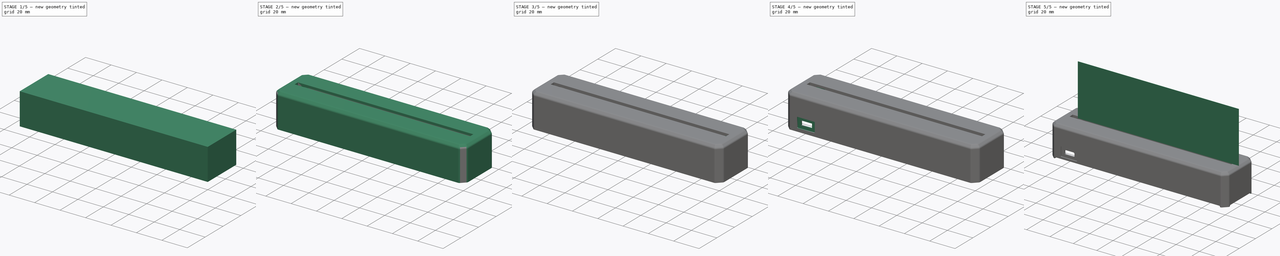
[diagram: build sequence overview — one tinted view per stage of 5, left to right]
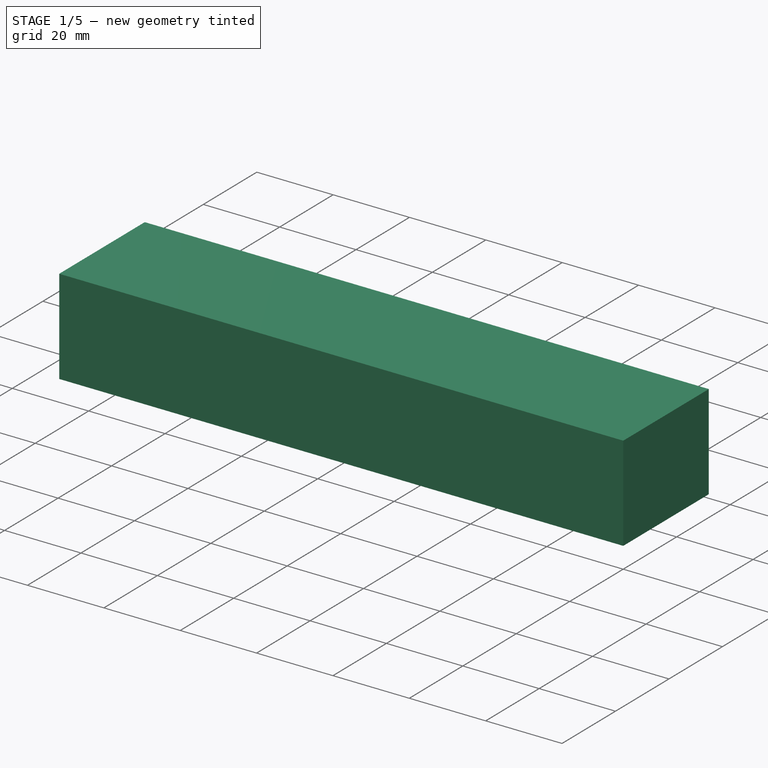
[diagram: stage 1 of 5 — iso view after this stage's code; geometry added in this stage tinted green]
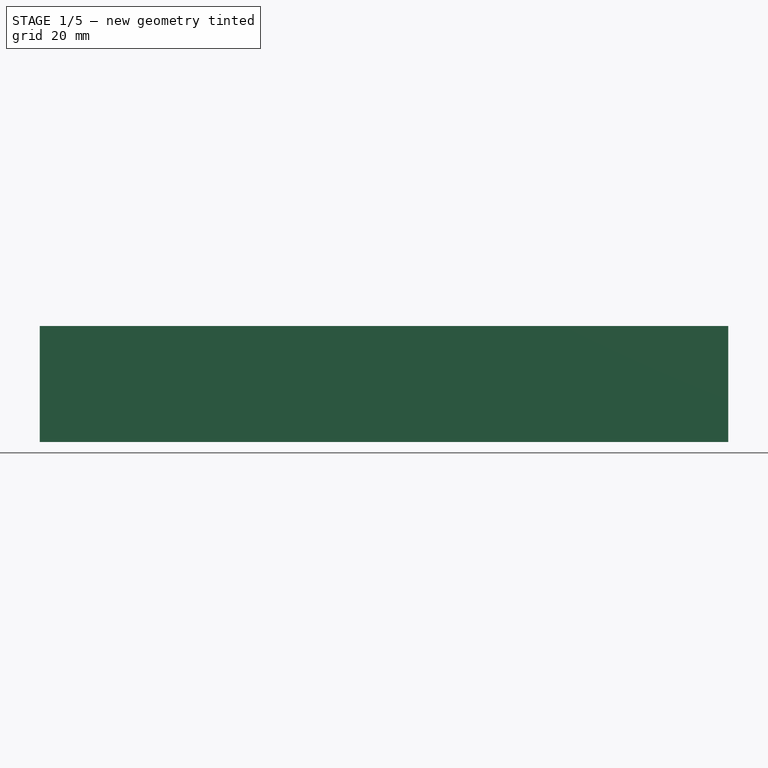
[diagram: stage 1 of 5 — front view after this stage's code; geometry added in this stage tinted green]
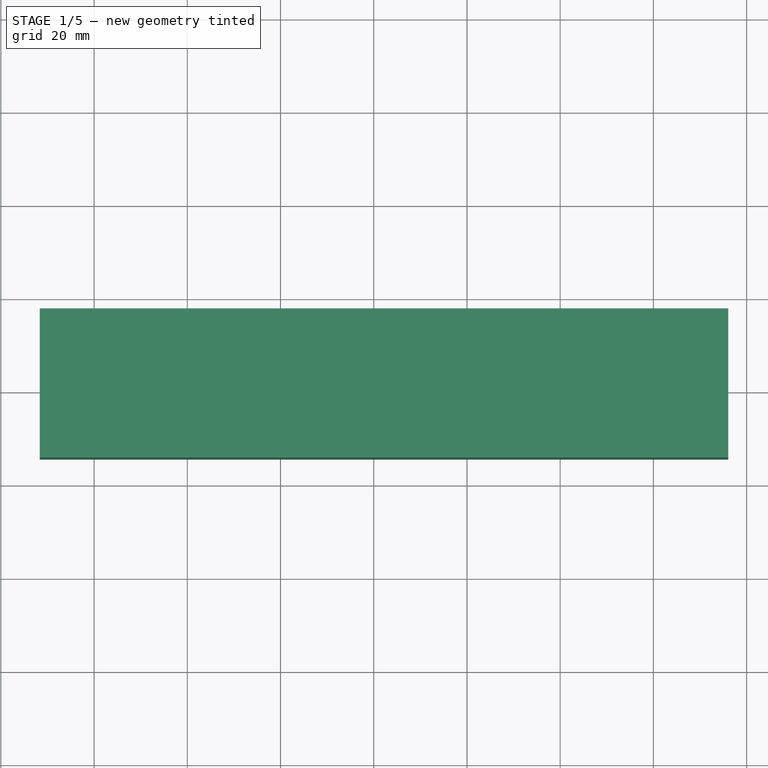
[diagram: stage 1 of 5 — top view after this stage's code; geometry added in this stage tinted green]
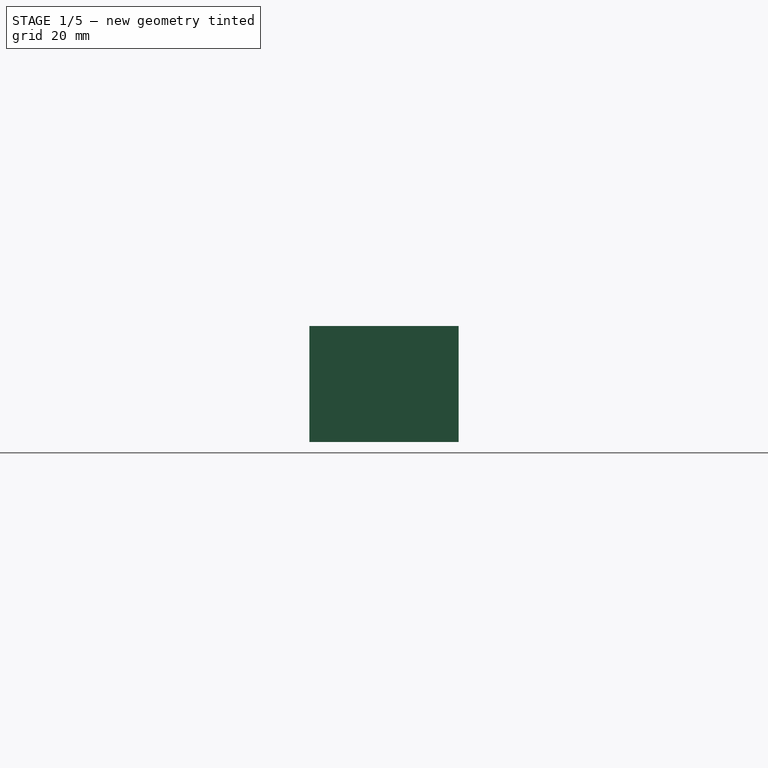
[diagram: stage 1 of 5 — right view after this stage's code; geometry added in this stage tinted green]
FCSTD DOCUMENT  (FreeCAD 0.18R16146 (Git))
Label: on_air_sign
License: All rights reserved
LicenseURL: http://en.wikipedia.org/wiki/All_rights_reserved
objects: Part::Feature×64, Sketcher::SketchObject×13, PartDesign::Pocket×7, PartDesign::Pad×6, PartDesign::ShapeBinder×5, App::Part×5, PartDesign::Body×4, PartDesign::Mirrored×4, PartDesign::Chamfer×2, PartDesign::Plane×2, PartDesign::Fillet×2, Part::Part2DObjectPython×1, PartDesign::FeatureBase×1, PartDesign::Thickness×1, PartDesign::CoordinateSystem×1, PartDesign::MultiTransform×1
note: 127 computed .brp shape members not serialized (recipe doc carries the construction recipe); baked Part::Feature solids carry a one-line shape summary decoded from their .brp

FEATURE [Part::Part2DObjectPython] ShapeString  # Draft 2D object (typed FeaturePython)
  FontFile = <path>
  Size = 30
  String = ON AIR
  Tracking = 0
FEATURE [PartDesign::ShapeBinder] ShapeBinder
  Support = -> [ShapeString]
  TraceSupport = false
FEATURE [Sketcher::SketchObject] Sketch
  ExternalGeometry = -> [ShapeBinder]
  MapMode = 5
  Support = -> [XY_Plane]
  sketch-geometry (8):
    g0: LineSegment StartX=-6.66716 StartY=34.1688 StartZ=0 EndX=131.066 EndY=34.1688 EndZ=0
    g1: LineSegment StartX=131.066 StartY=34.1688 StartZ=0 EndX=131.066 EndY=-9.77786 EndZ=0
    g2: LineSegment StartX=131.066 StartY=-9.77786 StartZ=0 EndX=-6.66716 EndY=-9.77786 EndZ=0
    g3: LineSegment StartX=-6.66716 StartY=-9.77786 StartZ=0 EndX=-6.66716 EndY=34.1688 EndZ=0
    g4: LineSegment [constr] StartX=70.2629 StartY=24.1688 StartZ=0 EndX=70.2629 EndY=34.1688 EndZ=0
    g5: LineSegment [constr] StartX=123.066 StartY=0.22214 StartZ=0 EndX=123.066 EndY=-9.77786 EndZ=0
    g6: LineSegment [constr] StartX=1.33284 StartY=10.3517 StartZ=0 EndX=-6.66716 EndY=10.3517 EndZ=0
    g7: LineSegment [constr] StartX=123.066 StartY=0.22214 StartZ=0 EndX=131.066 EndY=0.22214 EndZ=0
  constraints (24):
    c: Coincident(g0,g1)
    c: Coincident(g1,g2)
    c: Coincident(g2,g3)
    c: Coincident(g3,g0)
    c: Horizontal(g0)
    c: Horizontal(g2)
    c: Vertical(g1)
    c: Vertical(g3)
    c: Coincident(g4,g-4)
    c: PointOnObject(g4,g0)
    c: PointOnObject(g5,g2)
    c: Vertical(g5)
    c: Vertical(g4)
    c: DistanceY(g4,g4) = 10
    c: Coincident(g5,g-5)
    c: DistanceX(g5,g0) = 8
    c: Equal(g4,g5)
    c: Coincident(g6,g-3)
    c: PointOnObject(g6,g3)
    c: Horizontal(g6)
    c: Coincident(g7,g5)
    c: PointOnObject(g7,g1)
    c: Horizontal(g7)
    c: Equal(g7,g6)
FEATURE [PartDesign::Pad] Pad
  Length = 1.55
  Length2 = 100
  Profile = -> Sketch
  Refine = true
  Reversed = true
  Type = 0
FEATURE [PartDesign::Pocket] Pocket
  BaseFeature = -> Pad
  Length = 0.1
  Length2 = 100
  Profile = -> ShapeString
  Refine = true
  Type = 0
FEATURE [PartDesign::Body] Body  label="acylic_words_01"
  Group = -> [ShapeString,ShapeBinder,Sketch,Pad,Pocket]
  Origin = -> Origin
  Placement = pos=(0,0,5) rot=(1,0,0;1.5708rad)
  Tip = -> Pocket
FEATURE [PartDesign::FeatureBase] Clone
  BaseFeature = -> Body
  Placement = pos=(0,0,5) rot=(1,0,0;1.5708rad)
FEATURE [PartDesign::Body] Body002  label="card_stock"
  Group = -> [Sketch001,Pad001]
  Origin = -> Origin002
  Placement = pos=(-6.67,1.75,-4.78) rot=(0,0,1;0rad)
  Tip = -> Pad001
FEATURE [PartDesign::ShapeBinder] ShapeBinder001
  Placement = pos=(0,0,5) rot=(1,0,0;1.5708rad)
  Support = -> [Pocket,Clone]
  TraceSupport = true
FEATURE [PartDesign::ShapeBinder] ShapeBinder002
  Placement = pos=(124.4,3.3,5) rot=(0,0.707107,0.707107;3.14159rad)
  Support = -> [Clone]
  TraceSupport = true
FEATURE [Sketcher::SketchObject] Sketch002
  ExternalGeometry = -> [ShapeBinder001,ShapeBinder002]
  MapMode = 5
  Placement = pos=(124.4,3.3,-4.77786) rot=(0,1,0;3.14159rad)
  Support = -> [ShapeBinder002]
  sketch-geometry (8):
    g0: LineSegment StartX=-11.6655 StartY=14.35 StartZ=0 EndX=136.067 EndY=14.35 EndZ=0
    g1: LineSegment StartX=136.067 StartY=14.35 StartZ=0 EndX=136.067 EndY=-17.65 EndZ=0
    g2: LineSegment StartX=136.067 StartY=-17.65 StartZ=0 EndX=-11.6655 EndY=-17.65 EndZ=0
    g3: LineSegment StartX=-11.6655 StartY=-17.65 StartZ=0 EndX=-11.6655 EndY=14.35 EndZ=0
    g4: LineSegment [constr] StartX=131.066 StartY=4e-16 StartZ=0 EndX=131.066 EndY=14.35 EndZ=0
    g5: LineSegment [constr] StartX=131.067 StartY=-3.3 StartZ=0 EndX=131.067 EndY=-17.65 EndZ=0
    g6: LineSegment [constr] StartX=131.067 StartY=-3.3 StartZ=0 EndX=136.067 EndY=-3.3 EndZ=0
    g7: LineSegment [constr] StartX=-6.66553 StartY=-3.3 StartZ=0 EndX=-11.6655 EndY=-3.3 EndZ=0
  constraints (24):
    c: Coincident(g0,g1)
    c: Coincident(g1,g2)
    c: Coincident(g2,g3)
    c: Coincident(g3,g0)
    c: Horizontal(g0)
    c: Horizontal(g2)
    c: Vertical(g1)
    c: Vertical(g3)
    c: Coincident(g4,g-4)
    c: PointOnObject(g4,g0)
    c: Vertical(g4)
    c: Coincident(g5,g-3)
    c: Vertical(g5)
    c: Coincident(g6,g5)
    c: PointOnObject(g6,g1)
    c: Horizontal(g6)
    c: Coincident(g7,g-3)
    c: PointOnObject(g7,g3)
    c: Horizontal(g7)
    c: Equal(g6,g7)
    c: Equal(g5,g4)
    c: DistanceX(g6,g6) = 5
    c: DistanceY(g1,g1) = 32
    c: PointOnObject(g5,g2)
FEATURE [PartDesign::Pad] Pad002
  Length = 22.5
  Length2 = 2.4
  Placement = pos=(124.4,3.3,5) rot=(0,0.707107,0.707107;3.14159rad)
  Profile = -> Sketch002
  Refine = true
  Type = 4
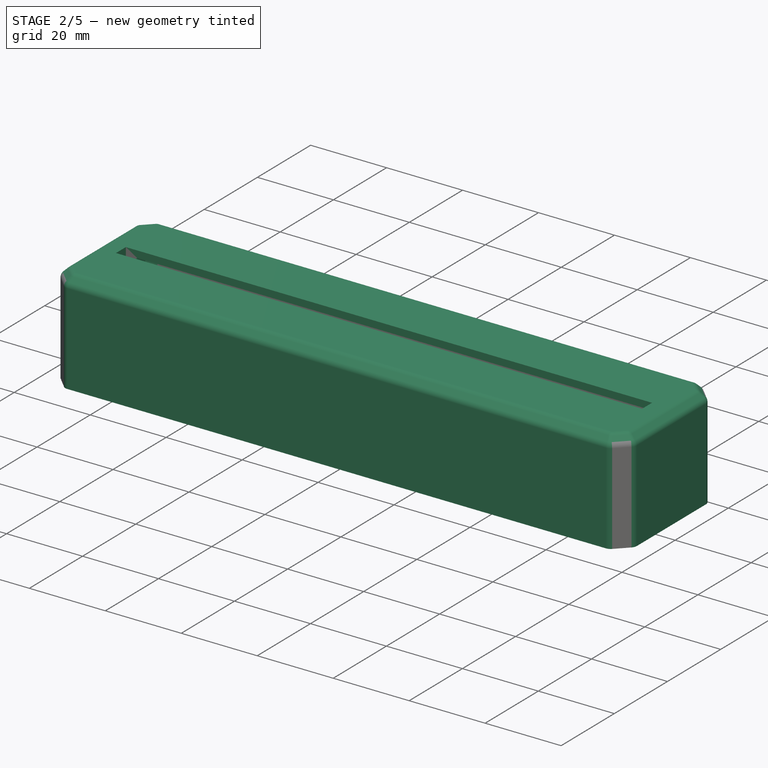
[diagram: stage 2 of 5 — iso view after this stage's code; geometry added in this stage tinted green]
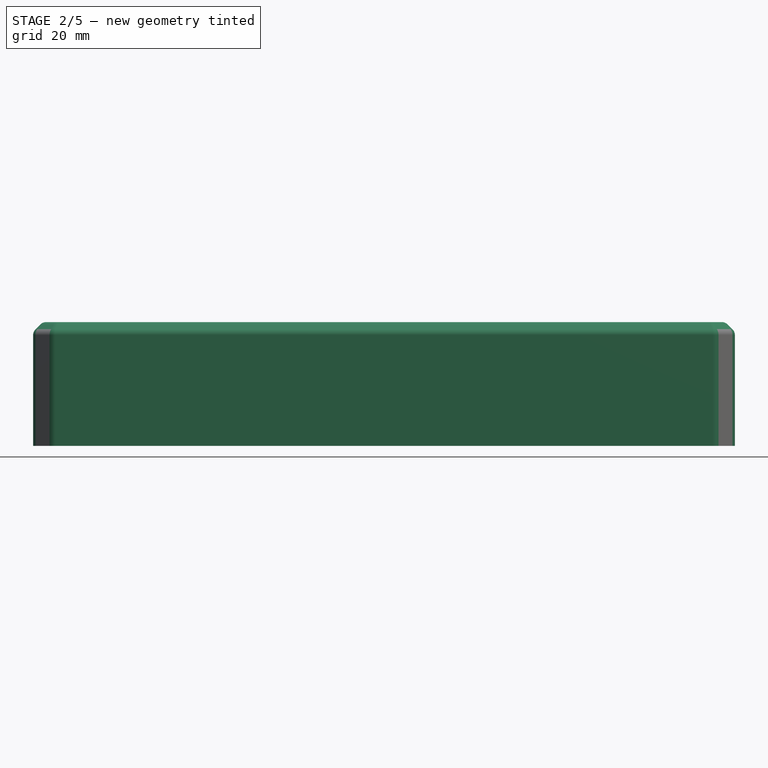
[diagram: stage 2 of 5 — front view after this stage's code; geometry added in this stage tinted green]
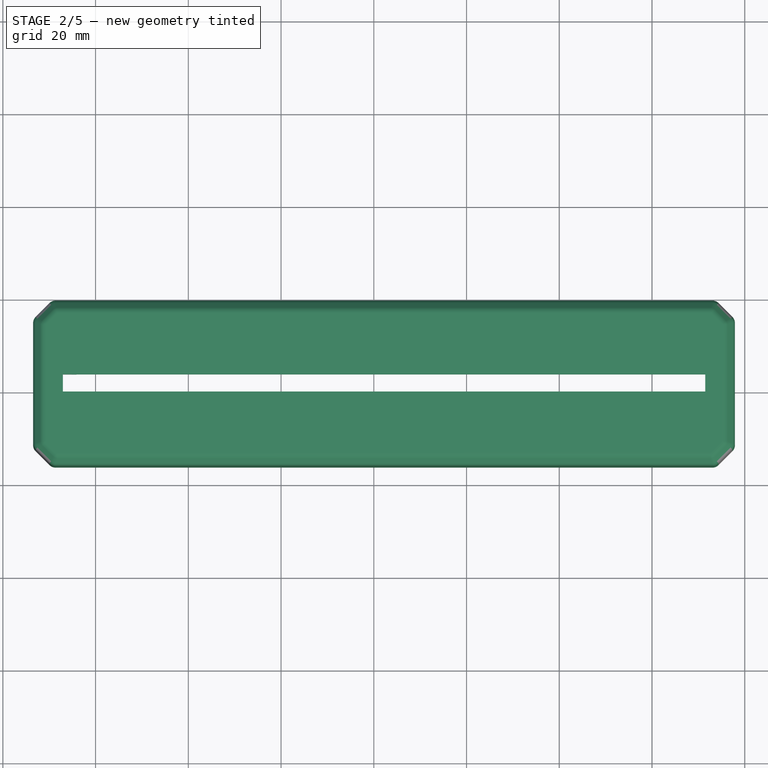
[diagram: stage 2 of 5 — top view after this stage's code; geometry added in this stage tinted green]
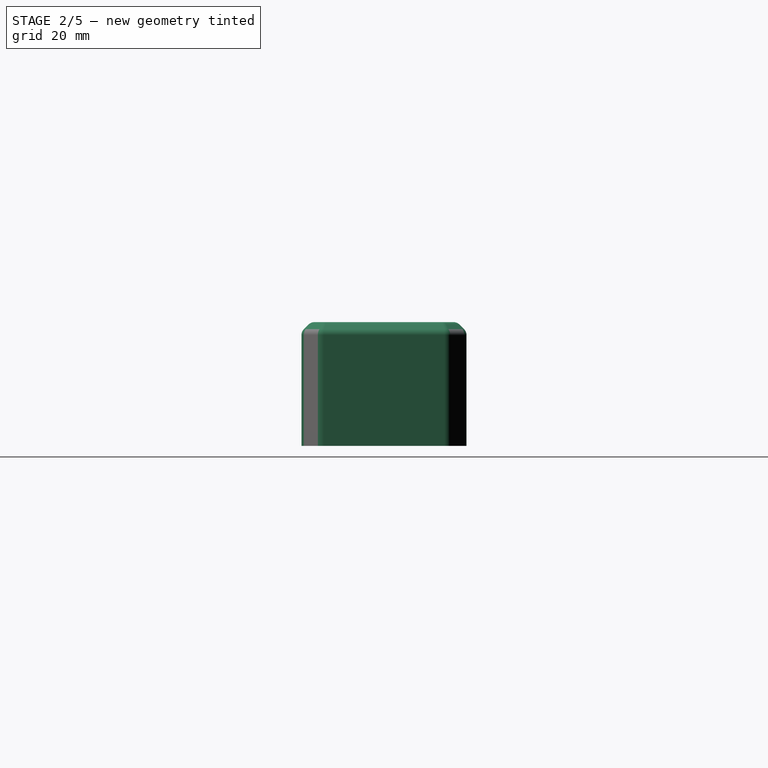
[diagram: stage 2 of 5 — right view after this stage's code; geometry added in this stage tinted green]
FEATURE [PartDesign::Chamfer] Chamfer
  Base = -> Pad002 [Edge8,Edge1,Edge2,Edge5]
  BaseFeature = -> Pad002
  Placement = pos=(124.4,3.3,5) rot=(0,0.707107,0.707107;3.14159rad)
  Size = 3
FEATURE [PartDesign::Chamfer] Chamfer001
  Base = -> Chamfer [Edge8,Edge10,Edge11,Edge9,Edge7,Edge5,Edge1,Edge6]
  BaseFeature = -> Chamfer
  Placement = pos=(124.4,3.3,5) rot=(0,0.707107,0.707107;3.14159rad)
  Size = 1
FEATURE [PartDesign::Thickness] Thickness
  Base = -> Chamfer001 [Face4]
  BaseFeature = -> Chamfer001
  Join = 0
  Mode = 0
  Value = 1.8
FEATURE [Part::Feature] Shape016  label="D11_LED_D5.0mm-4_RGB_Staggered_Pins_5FB95B26"
  Placement = pos=(169.255,-61.74,0) rot=(0,0,1;0rad)
  shape: bbox 5.513 x 5.8 x 15.6 mm, 58 faces (baked)
FEATURE [Part::Feature] Shape015  label="D10_LED_D5.0mm-4_RGB_Staggered_Pins_5FB95B11"
  Placement = pos=(157.774,-61.74,0) rot=(0,0,1;0rad)
  shape: bbox 5.513 x 5.8 x 15.6 mm, 58 faces (baked)
FEATURE [Part::Feature] Shape004  label="R4_R_Axial_DIN0204_L36mm_D16mm_P762mm_Horizontal_5FB9A470"
  Placement = pos=(160.26,-73.9,0) rot=(0,0,1;0rad)
  shape: bbox 8.285 x 1.732 x 4.666 mm, 17 faces (baked)
FEATURE [Part::Feature] Shape025  label="R11_R_Axial_DIN0204_L36mm_D16mm_P762mm_Horizontal_5FB95C39"
  Placement = pos=(76.005,-56.01,0) rot=(0,0,1;0rad)
  shape: bbox 8.285 x 1.732 x 4.666 mm, 17 faces (baked)
FEATURE [Part::Feature] Shape018  label="R1_R_Axial_DIN0204_L36mm_D16mm_P762mm_Horizontal_5FB95B98"
  Placement = pos=(53.0325,-58.15,0) rot=(0,0,1;0rad)
  shape: bbox 8.285 x 1.732 x 4.666 mm, 17 faces (baked)
FEATURE [Part::Feature] Shape007  label="D2_LED_D5.0mm-4_RGB_Staggered_Pins_5FB95A69"
  Placement = pos=(65.9237,-61.74,0) rot=(0,0,1;0rad)
  shape: bbox 5.513 x 5.8 x 15.6 mm, 58 faces (baked)
FEATURE [Part::Feature] Shape  label="Q1_TO-92_Inline_Narrow_5FB8CAF2"
  Placement = pos=(149.64,-70.8,0) rot=(0,0,1;0rad)
  shape: bbox 4.83 x 3.745 x 9.8 mm, 19 faces (baked)
FEATURE [Part::Feature] Shape005  label="R5_R_Axial_DIN0204_L36mm_D16mm_P762mm_Horizontal_5FB8CB89"
  Placement = pos=(173.56,-73.9,0) rot=(0,0,1;0rad)
  shape: bbox 8.285 x 1.732 x 4.666 mm, 17 faces (baked)
FEATURE [Part::Feature] Shape006  label="D1_LED_D5.0mm-4_RGB_Staggered_Pins_5FB95A54"
  Placement = pos=(54.4325,-61.74,0) rot=(0,0,1;0rad)
  shape: bbox 5.513 x 5.8 x 15.6 mm, 58 faces (baked)
FEATURE [Part::Feature] Shape027  label="R13_R_Axial_DIN0204_L36mm_D16mm_P762mm_Horizontal_5FB95C67"
  Placement = pos=(87.4862,-58.14,0) rot=(0,0,1;0rad)
  shape: bbox 8.285 x 1.732 x 4.666 mm, 17 faces (baked)
FEATURE [Part::Feature] Shape009  label="D4_LED_D5.0mm-4_RGB_Staggered_Pins_5FB95A93"
  Placement = pos=(88.8863,-61.74,0) rot=(0,0,1;0rad)
  shape: bbox 5.513 x 5.8 x 15.6 mm, 58 faces (baked)
FEATURE [Part::Feature] Shape008  label="D3_LED_D5.0mm-4_RGB_Staggered_Pins_5FB95A7E"
  Placement = pos=(77.405,-61.74,0) rot=(0,0,1;0rad)
  shape: bbox 5.513 x 5.8 x 15.6 mm, 58 faces (baked)
FEATURE [Part::Feature] Shape001  label="Q2_TO-92_Inline_Narrow_5FB8CB04"
  Placement = pos=(162.8,-70.8,0) rot=(0,0,1;0rad)
  shape: bbox 4.83 x 3.745 x 9.8 mm, 19 faces (baked)
FEATURE [Part::Feature] Shape017  label="D12_LED_D5.0mm-4_RGB_Staggered_Pins_5FB95B3B"
  Placement = pos=(180.736,-61.74,0) rot=(0,0,1;0rad)
  shape: bbox 5.513 x 5.8 x 15.6 mm, 58 faces (baked)
FEATURE [Part::Feature] Shape014  label="D9_LED_D5.0mm-4_RGB_Staggered_Pins_5FB95AFC"
  Placement = pos=(146.292,-61.74,0) rot=(0,0,1;0rad)
  shape: bbox 5.513 x 5.8 x 15.6 mm, 58 faces (baked)
FEATURE [Part::Feature] Shape024  label="R10_R_Axial_DIN0204_L36mm_D16mm_P762mm_Horizontal_5FB95C22"
  Placement = pos=(76.005,-58.16,0) rot=(0,0,1;0rad)
  shape: bbox 8.285 x 1.732 x 4.666 mm, 17 faces (baked)
FEATURE [Part::Feature] Shape020  label="R6_R_Axial_DIN0204_L36mm_D16mm_P762mm_Horizontal_5FB95BC6"
  Placement = pos=(53.0325,-53.86,0) rot=(0,0,1;0rad)
  shape: bbox 8.285 x 1.732 x 4.666 mm, 17 faces (baked)
FEATURE [Part::Feature] Shape022  label="R8_R_Axial_DIN0204_L36mm_D16mm_P762mm_Horizontal_5FB95BF4"
  Placement = pos=(64.5238,-56,0) rot=(0,0,1;0rad)
  shape: bbox 8.285 x 1.732 x 4.666 mm, 17 faces (baked)
FEATURE [Part::Feature] Shape031  label="R17_R_Axial_DIN0204_L36mm_D16mm_P762mm_Horizontal_5FB95CC3"
  Placement = pos=(98.9675,-56,0) rot=(0,0,1;0rad)
  shape: bbox 8.285 x 1.732 x 4.666 mm, 17 faces (baked)
FEATURE [Sketcher::SketchObject] PCB_Sketch_ac20
  sketch-geometry (8):
    g0: LineSegment StartX=46.65 StartY=-74.5 StartZ=0 EndX=46.65 EndY=-50.53 EndZ=0
    g1: LineSegment StartX=189.86 StartY=-78 StartZ=0 EndX=50.15 EndY=-78 EndZ=0
    g2: LineSegment StartX=193.35 StartY=-50.54 StartZ=0 EndX=193.35 EndY=-74.5 EndZ=0
    g3: LineSegment StartX=50.14 StartY=-47.04 StartZ=0 EndX=189.85 EndY=-47.04 EndZ=0
    g4: ArcOfCircle CenterX=189.85 CenterY=-50.54 CenterZ=0 NormalX=0 NormalY=0 NormalZ=1 AngleXU=0 Radius=3.5 StartAngle=0 EndAngle=1.5708
    g5: ArcOfCircle CenterX=189.85 CenterY=-74.5 CenterZ=0 NormalX=0 NormalY=0 NormalZ=1 AngleXU=0 Radius=3.50001 StartAngle=4.71525 EndAngle=6.28319
    g6: ArcOfCircle CenterX=50.15 CenterY=-74.5 CenterZ=0 NormalX=0 NormalY=0 NormalZ=1 AngleXU=0 Radius=3.5 StartAngle=3.14159 EndAngle=4.71239
    g7: ArcOfCircle CenterX=50.14 CenterY=-50.53 CenterZ=0 NormalX=0 NormalY=0 NormalZ=1 AngleXU=0 Radius=3.49 StartAngle=1.5708 EndAngle=3.14159
  constraints (7):
    c: Coincident(g0,g6)
    c: Coincident(g0,g7)
    c: Coincident(g1,g6)
    c: Coincident(g1,g5)
    c: Coincident(g3,g4)
    c: Coincident(g2,g5)
    c: Coincident(g2,g4)
FEATURE [Part::Feature] Shape013  label="D8_LED_D5.0mm-4_RGB_Staggered_Pins_5FB95AE7"
  Placement = pos=(134.811,-61.74,0) rot=(0,0,1;0rad)
  shape: bbox 5.513 x 5.8 x 15.6 mm, 58 faces (baked)
FEATURE [Part::Feature] Shape003  label="R3_R_Axial_DIN0204_L36mm_D16mm_P762mm_Horizontal_5FB8CB5B"
  Placement = pos=(147.1,-73.9,0) rot=(0,0,1;0rad)
  shape: bbox 8.285 x 1.732 x 4.666 mm, 17 faces (baked)
FEATURE [Part::Feature] Shape030  label="R16_R_Axial_DIN0204_L36mm_D16mm_P762mm_Horizontal_5FB95CAC"
  Placement = pos=(98.9675,-58.15,0) rot=(0,0,1;0rad)
  shape: bbox 8.285 x 1.732 x 4.666 mm, 17 faces (baked)
FEATURE [Part::Feature] Shape028  label="R14_R_Axial_DIN0204_L36mm_D16mm_P762mm_Horizontal_5FB95C7E"
  Placement = pos=(87.4862,-55.99,0) rot=(0,0,1;0rad)
  shape: bbox 8.285 x 1.732 x 4.666 mm, 17 faces (baked)
FEATURE [Part::Feature] Shape039  label="R25_R_Axial_DIN0204_L36mm_D16mm_P762mm_Horizontal_5FB95D7B"
  Placement = pos=(133.411,-58.15,0) rot=(0,0,1;0rad)
  shape: bbox 8.285 x 1.732 x 4.666 mm, 17 faces (baked)
FEATURE [Part::Feature] Shape023  label="R9_R_Axial_DIN0204_L36mm_D16mm_P762mm_Horizontal_5FB95C0B"
  Placement = pos=(64.5238,-53.85,0) rot=(0,0,1;0rad)
  shape: bbox 8.285 x 1.732 x 4.666 mm, 17 faces (baked)
FEATURE [Part::Feature] Shape043  label="R29_R_Axial_DIN0204_L36mm_D16mm_P762mm_Horizontal_5FB95DD7"
  Placement = pos=(144.893,-56,0) rot=(0,0,1;0rad)
  shape: bbox 8.285 x 1.732 x 4.666 mm, 17 faces (baked)
FEATURE [Part::Feature] Shape038  label="R24_R_Axial_DIN0204_L36mm_D16mm_P762mm_Horizontal_5FBA12B6"
  Placement = pos=(121.93,-53.85,0) rot=(0,0,1;0rad)
  shape: bbox 8.285 x 1.732 x 4.666 mm, 17 faces (baked)
FEATURE [Part::Feature] Shape002  label="Q3_TO-92_Inline_Narrow_5FB8CB16"
  Placement = pos=(176.1,-70.8,0) rot=(0,0,1;0rad)
  shape: bbox 4.83 x 3.745 x 9.8 mm, 19 faces (baked)
FEATURE [Part::Feature] Shape040  label="R26_R_Axial_DIN0204_L36mm_D16mm_P762mm_Horizontal_5FB95D92"
  Placement = pos=(133.411,-56,0) rot=(0,0,1;0rad)
  shape: bbox 8.285 x 1.732 x 4.666 mm, 17 faces (baked)
FEATURE [Part::Feature] Shape010  label="D5_LED_D5.0mm-4_RGB_Staggered_Pins_5FB95AA8"
  Placement = pos=(100.368,-61.74,0) rot=(0,0,1;0rad)
  shape: bbox 5.513 x 5.8 x 15.6 mm, 58 faces (baked)
FEATURE [Part::Feature] Shape037  label="R23_R_Axial_DIN0204_L36mm_D16mm_P762mm_Horizontal_5FBA12F8"
  Placement = pos=(121.93,-56,0) rot=(0,0,1;0rad)
  shape: bbox 8.285 x 1.732 x 4.666 mm, 17 faces (baked)
FEATURE [Part::Feature] Shape035  label="R21_R_Axial_DIN0204_L36mm_D16mm_P762mm_Horizontal_5FB95D1F"
  Placement = pos=(110.449,-53.85,0) rot=(0,0,1;0rad)
  shape: bbox 8.285 x 1.732 x 4.666 mm, 17 faces (baked)
FEATURE [Part::Feature] Shape012  label="D7_LED_D5.0mm-4_RGB_Staggered_Pins_5FB95AD2"
  Placement = pos=(123.33,-61.74,0) rot=(0,0,1;0rad)
  shape: bbox 5.513 x 5.8 x 15.6 mm, 58 faces (baked)
FEATURE [Part::Feature] Shape019  label="R2_R_Axial_DIN0204_L36mm_D16mm_P762mm_Horizontal_5FB95BAF"
  Placement = pos=(53.0325,-56,0) rot=(0,0,1;0rad)
  shape: bbox 8.285 x 1.732 x 4.666 mm, 17 faces (baked)
FEATURE [Part::Feature] Shape033  label="R19_R_Axial_DIN0204_L36mm_D16mm_P762mm_Horizontal_5FB95CF1"
  Placement = pos=(110.449,-58.15,0) rot=(0,0,1;0rad)
  shape: bbox 8.285 x 1.732 x 4.666 mm, 17 faces (baked)
FEATURE [Part::Feature] Shape034  label="R20_R_Axial_DIN0204_L36mm_D16mm_P762mm_Horizontal_5FB95D08"
  Placement = pos=(110.449,-56,0) rot=(0,0,1;0rad)
  shape: bbox 8.285 x 1.732 x 4.666 mm, 17 faces (baked)
FEATURE [Part::Feature] Shape026  label="R12_R_Axial_DIN0204_L36mm_D16mm_P762mm_Horizontal_5FB95C50"
  Placement = pos=(76.005,-53.86,0) rot=(0,0,1;0rad)
  shape: bbox 8.285 x 1.732 x 4.666 mm, 17 faces (baked)
FEATURE [Part::Feature] Shape011  label="D6_LED_D5.0mm-4_RGB_Staggered_Pins_5FB95ABD"
  Placement = pos=(111.849,-61.74,0) rot=(0,0,1;0rad)
  shape: bbox 5.513 x 5.8 x 15.6 mm, 58 faces (baked)
FEATURE [Part::Feature] Shape029  label="R15_R_Axial_DIN0204_L36mm_D16mm_P762mm_Horizontal_5FB95C95"
  Placement = pos=(87.4862,-53.85,0) rot=(0,0,1;0rad)
  shape: bbox 8.285 x 1.732 x 4.666 mm, 17 faces (baked)
FEATURE [Part::Feature] Shape036  label="R22_R_Axial_DIN0204_L36mm_D16mm_P762mm_Horizontal_5FB95D36"
  Placement = pos=(121.93,-58.15,0) rot=(0,0,1;0rad)
  shape: bbox 8.285 x 1.732 x 4.666 mm, 17 faces (baked)
FEATURE [Part::Feature] Shape021  label="R7_R_Axial_DIN0204_L36mm_D16mm_P762mm_Horizontal_5FB95BDD"
  Placement = pos=(64.5238,-58.15,0) rot=(0,0,1;0rad)
  shape: bbox 8.285 x 1.732 x 4.666 mm, 17 faces (baked)
FEATURE [PartDesign::CoordinateSystem] Local_CS_ac20
  AttacherType = Attacher::AttachEngine3D
FEATURE [Part::Feature] Shape058  label="U1_SOIC_16_39x99mm_P127mm_5FBA1B43"
  Placement = pos=(91.2,-71.1,-1.6) rot=(0.707107,0.707107,0;3.14159rad)
  shape: bbox 9.9 x 6 x 1.75 mm, 276 faces (baked)
FEATURE [Part::Feature] Shape032  label="R18_R_Axial_DIN0204_L36mm_D16mm_P762mm_Horizontal_5FB95CDA"
  Placement = pos=(98.9675,-53.85,0) rot=(0,0,1;0rad)
  shape: bbox 8.285 x 1.732 x 4.666 mm, 17 faces (baked)
FEATURE [Part::Feature] Shape042  label="R28_R_Axial_DIN0204_L36mm_D16mm_P762mm_Horizontal_5FB95DC0"
  Placement = pos=(144.893,-58.15,0) rot=(0,0,1;0rad)
  shape: bbox 8.285 x 1.732 x 4.666 mm, 17 faces (baked)
FEATURE [Part::Feature] Shape041  label="R27_R_Axial_DIN0204_L36mm_D16mm_P762mm_Horizontal_5FB95DA9"
  Placement = pos=(133.411,-53.85,0) rot=(0,0,1;0rad)
  shape: bbox 8.285 x 1.732 x 4.666 mm, 17 faces (baked)
FEATURE [Part::Feature] Shape045  label="R31_R_Axial_DIN0204_L36mm_D16mm_P762mm_Horizontal_5FB95E05"
  Placement = pos=(156.374,-58.15,0) rot=(0,0,1;0rad)
  shape: bbox 8.285 x 1.732 x 4.666 mm, 17 faces (baked)
FEATURE [Part::Feature] Shape044  label="R30_R_Axial_DIN0204_L36mm_D16mm_P762mm_Horizontal_5FB95DEE"
  Placement = pos=(144.893,-53.85,0) rot=(0,0,1;0rad)
  shape: bbox 8.285 x 1.732 x 4.666 mm, 17 faces (baked)
FEATURE [Part::Feature] Shape048  label="R34_R_Axial_DIN0204_L36mm_D16mm_P762mm_Horizontal_5FB95E4A"
  Placement = pos=(167.855,-58.15,0) rot=(0,0,1;0rad)
  shape: bbox 8.285 x 1.732 x 4.666 mm, 17 faces (baked)
FEATURE [Part::Feature] Shape049  label="R35_R_Axial_DIN0204_L36mm_D16mm_P762mm_Horizontal_5FB95E61"
  Placement = pos=(167.855,-56,0) rot=(0,0,1;0rad)
  shape: bbox 8.285 x 1.732 x 4.666 mm, 17 faces (baked)
FEATURE [Part::Feature] Shape046  label="R32_R_Axial_DIN0204_L36mm_D16mm_P762mm_Horizontal_5FB95E1C"
  Placement = pos=(156.374,-56,0) rot=(0,0,1;0rad)
  shape: bbox 8.285 x 1.732 x 4.666 mm, 17 faces (baked)
FEATURE [Part::Feature] Shape047  label="R33_R_Axial_DIN0204_L36mm_D16mm_P762mm_Horizontal_5FB95E33"
  Placement = pos=(156.374,-53.85,0) rot=(0,0,1;0rad)
  shape: bbox 8.285 x 1.732 x 4.666 mm, 17 faces (baked)
FEATURE [Part::Feature] Shape052  label="R38_R_Axial_DIN0204_L36mm_D16mm_P762mm_Horizontal_5FB95EA6"
  Placement = pos=(179.336,-56,0) rot=(0,0,1;0rad)
  shape: bbox 8.285 x 1.732 x 4.666 mm, 17 faces (baked)
FEATURE [Part::Feature] Shape051  label="R37_R_Axial_DIN0204_L36mm_D16mm_P762mm_Horizontal_5FB95E8F"
  Placement = pos=(179.336,-58.15,0) rot=(0,0,1;0rad)
  shape: bbox 8.285 x 1.732 x 4.666 mm, 17 faces (baked)
FEATURE [Part::Feature] Shape050  label="R36_R_Axial_DIN0204_L36mm_D16mm_P762mm_Horizontal_5FB95E78"
  Placement = pos=(167.855,-53.85,0) rot=(0,0,1;0rad)
  shape: bbox 8.285 x 1.732 x 4.666 mm, 17 faces (baked)
FEATURE [Part::Feature] Shape054  label="C1_C_Disc_D38mm_W26mm_P250mm_5FB9EC79"
  Placement = pos=(67.7,-70.4,0) rot=(0,0,-1;1.5708rad)
  shape: bbox 2.6 x 3.8 x 5.9 mm, 10 faces (baked)
FEATURE [Part::Feature] Shape053  label="R39_R_Axial_DIN0204_L36mm_D16mm_P762mm_Horizontal_5FB95EBD"
  Placement = pos=(179.336,-53.85,0) rot=(0,0,1;0rad)
  shape: bbox 8.285 x 1.732 x 4.666 mm, 17 faces (baked)
FEATURE [Part::Feature] Shape056  label="C4_C_0603_1608Metric_5FBA2852"
  Placement = pos=(90.9,-75.8,-1.6) rot=(1,0,0;3.14159rad)
  shape: bbox 1.6 x 0.8 x 0.8 mm, 28 faces (baked)
FEATURE [Part::Feature] Shape055  label="C2_C_Disc_D38mm_W26mm_P250mm_5FB9EC8E"
  Placement = pos=(83,-70.4,0) rot=(0,0,-1;1.5708rad)
  shape: bbox 2.6 x 3.8 x 5.9 mm, 10 faces (baked)
FEATURE [Part::Feature] Shape062  label="C5_C_Disc_D43mm_W19mm_P500mm_5FBA2C3D"
  Placement = pos=(97.9,-73.6,0) rot=(0,0,1;1.5708rad)
  shape: bbox 1.9 x 5.5 x 6.4 mm, 10 faces (baked)
FEATURE [Part::Feature] Shape057  label="J1_ZX62D-B-5PA8_5FB9EDEE"
  Placement = pos=(61.3,-75.3,-1.6) rot=(0,1,0;3.14159rad)
  shape: bbox 8.093 x 5.8 x 3.48 mm, 415 faces (baked)
FEATURE [Part::Feature] Shape060  label="R40_R_0805_2012Metric_5FBA0DD5"
  Placement = pos=(62.6,-71.6,-1.6) rot=(1,0,0;3.14159rad)
  shape: bbox 2 x 1.2 x 0.45 mm, 26 faces (baked)
FEATURE [Part::Feature] Shape059  label="Y1_Crystal_HC49-4H_Vertical_5FB9EE3D"
  Placement = pos=(72.9,-70.4,0) rot=(0,0,1;0rad)
  shape: bbox 11.05 x 4.65 x 7 mm, 26 faces (baked)
FEATURE [App::Part] Top_ac20
  Group = -> [Shape,Shape001,Shape002,Shape003,Shape004,Shape005,Shape006,Shape007,Shape008,Shape009,Shape010,Shape011,Shape012,Shape013,Shape014,Shape015,Shape016,Shape017,Shape018,Shape019,Shape020,Shape021,Shape022,Shape023,Shape024,Shape025,Shape026,Shape027,Shape028,Shape029,Shape030,Shape031,Shape032,Shape033,Shape034,Shape035,Shape036,Shape037,Shape038,Shape039,Shape040,Shape041,Shape042,Shape043,+14 more]
  Origin = -> Origin006
FEATURE [Part::Feature] Shape061  label="R41_R_0805_2012Metric_5FBA0DE6"
  Placement = pos=(62.6,-69.7,-1.6) rot=(1,0,0;3.14159rad)
  shape: bbox 2 x 1.2 x 0.45 mm, 26 faces (baked)
FEATURE [App::Part] Bot_ac20
  Group = -> [Shape056,Shape057,Shape058,Shape060,Shape061]
  Origin = -> Origin007
FEATURE [App::Part] Step_Models_ac20
  Group = -> [Top_ac20,Bot_ac20]
  Origin = -> Origin005
FEATURE [Part::Feature] Pcb_ac20
  shape: bbox 146.7 x 30.96 x 1.6 mm, 169 faces (baked)
FEATURE [App::Part] Board_Geoms_ac20
  Group = -> [Local_CS_ac20,Pcb_ac20,PCB_Sketch_ac20]
  Origin = -> Origin008
FEATURE [App::Part] Board_ac20  label="on_air_sign"
  Group = -> [Board_Geoms_ac20,Step_Models_ac20]
  Origin = -> Origin004
  Placement = pos=(-57.8,64.17,-17.78) rot=(0,0,1;0rad)
FEATURE [Sketcher::SketchObject] Sketch003
  ExternalGeometry = -> [ShapeBinder001,ShapeBinder002]
  MapMode = 5
  Placement = pos=(0,-5e-16,-2.37786) rot=(1,0,0;3.14159rad)
  Support = -> [Thickness]
  sketch-geometry (8):
    g0: LineSegment StartX=-7.06553 StartY=0.2 StartZ=0 EndX=131.467 EndY=0.2 EndZ=0
    g1: LineSegment StartX=131.467 StartY=0.2 StartZ=0 EndX=131.467 EndY=-3.5 EndZ=0
    g2: LineSegment StartX=131.467 StartY=-3.5 StartZ=0 EndX=-7.06553 EndY=-3.5 EndZ=0
    g3: LineSegment StartX=-7.06553 StartY=-3.5 StartZ=0 EndX=-7.06553 EndY=0.2 EndZ=0
    g4: LineSegment [constr] StartX=-6.66553 StartY=-3.3 StartZ=0 EndX=-7.06553 EndY=-3.3 EndZ=0
    g5: LineSegment [constr] StartX=-6.66553 StartY=-3.3 StartZ=0 EndX=-6.66553 EndY=-3.5 EndZ=0
    g6: LineSegment [constr] StartX=131.067 StartY=-3.3 StartZ=0 EndX=131.467 EndY=-3.3 EndZ=0
    g7: LineSegment [constr] StartX=131.066 StartY=-1.1e-15 StartZ=0 EndX=131.066 EndY=0.2 EndZ=0
  constraints (24):
    c: Coincident(g0,g1)
    c: Coincident(g1,g2)
    c: Coincident(g2,g3)
    c: Coincident(g3,g0)
    c: Horizontal(g0)
    c: Horizontal(g2)
    c: Vertical(g1)
    c: Vertical(g3)
    c: Coincident(g4,g-4)
    c: PointOnObject(g4,g3)
    c: Horizontal(g4)
    c: Coincident(g5,g4)
    c: PointOnObject(g5,g2)
    c: Vertical(g5)
    c: Coincident(g6,g-4)
    c: PointOnObject(g6,g1)
    c: Horizontal(g6)
    c: Coincident(g7,g-3)
    c: PointOnObject(g7,g0)
    c: Vertical(g7)
    c: DistanceY(g7,g7) = 0.2
    c: Equal(g7,g5)
    c: Equal(g4,g6)
    c: DistanceX(g6,g6) = 0.4
FEATURE [PartDesign::Pocket] Pocket001
  BaseFeature = -> Thickness
  Length = 5
  Length2 = 100
  Profile = -> Sketch003
  Refine = true
  Type = 1
FEATURE [Sketcher::SketchObject] Sketch004
  ExternalGeometry = -> [Pocket001]
  MapMode = 5
  Placement = pos=(0,-5e-16,-2.37786) rot=(1,0,0;3.14159rad)
  Support = -> [Pocket001]
  sketch-geometry (8):
    g0: LineSegment StartX=-10.0655 StartY=3.2 StartZ=0 EndX=-4.06553 EndY=3.2 EndZ=0
    g1: LineSegment StartX=-4.06553 StartY=3.2 StartZ=0 EndX=-4.06553 EndY=0.2 EndZ=0
    g2: LineSegment StartX=-4.06553 StartY=-6.5 StartZ=0 EndX=-10.0655 EndY=-6.5 EndZ=0
    g3: LineSegment StartX=-10.0655 StartY=-6.5 StartZ=0 EndX=-10.0655 EndY=3.2 EndZ=0
    g4: LineSegment StartX=-4.06553 StartY=0.2 StartZ=0 EndX=-7.06553 EndY=0.2 EndZ=0
    g5: LineSegment StartX=-4.06553 StartY=-3.5 StartZ=0 EndX=-7.06553 EndY=-3.5 EndZ=0
    g6: LineSegment StartX=-7.06553 StartY=-3.5 StartZ=0 EndX=-7.06553 EndY=0.2 EndZ=0
    g7: LineSegment StartX=-4.06553 StartY=-3.5 StartZ=0 EndX=-4.06553 EndY=-6.5 EndZ=0
  constraints (21):
    c: Coincident(g0,g1)
    c: Coincident(g7,g2)
    c: Coincident(g2,g3)
    c: Coincident(g3,g0)
    c: Horizontal(g0)
    c: Horizontal(g2)
    c: Vertical(g1)
    c: Coincident(g4,g-3)
    c: Horizontal(g4)
    c: Coincident(g5,g-3)
    c: Horizontal(g5)
    c: Coincident(g6,g4)
    c: Coincident(g6,g5)
    c: Coincident(g1,g4)
    c: Coincident(g7,g5)
    c: Tangent(g1,g7)
    c: Equal(g1,g7)
    c: Equal(g2,g0)
    c: DistanceY(g1,g1) = 3
    c: DistanceX(g0,g4) = 3
    c: DistanceX(g5,g5) = 3
FEATURE [PartDesign::Pad] Pad003
  BaseFeature = -> Pocket001
  Length = 10
  Length2 = 100
  Profile = -> Sketch004
  Refine = true
  Type = 3
  UpToFace = -> ShapeBinder001 [Face1]
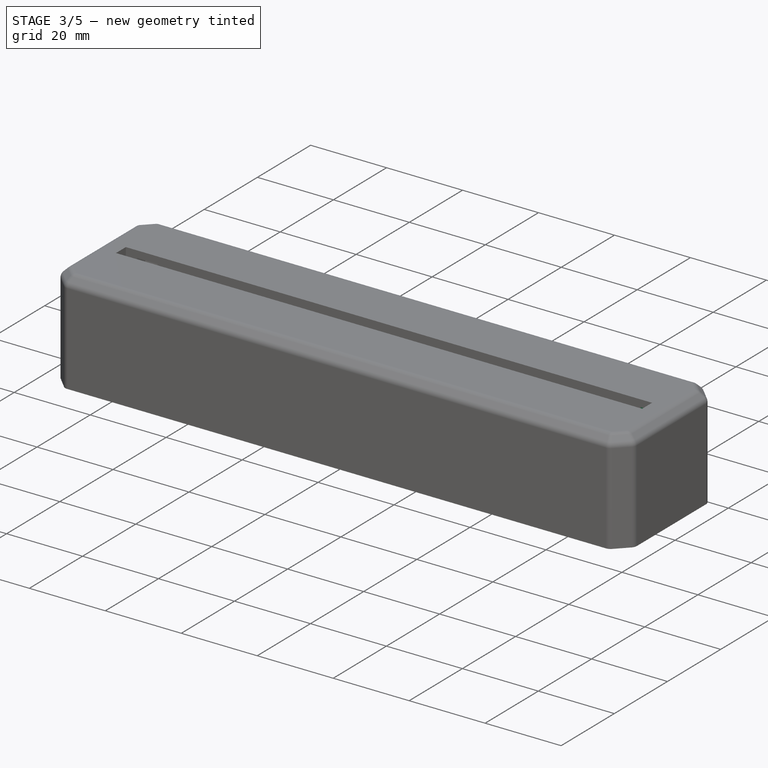
[diagram: stage 3 of 5 — iso view after this stage's code; geometry added in this stage tinted green]
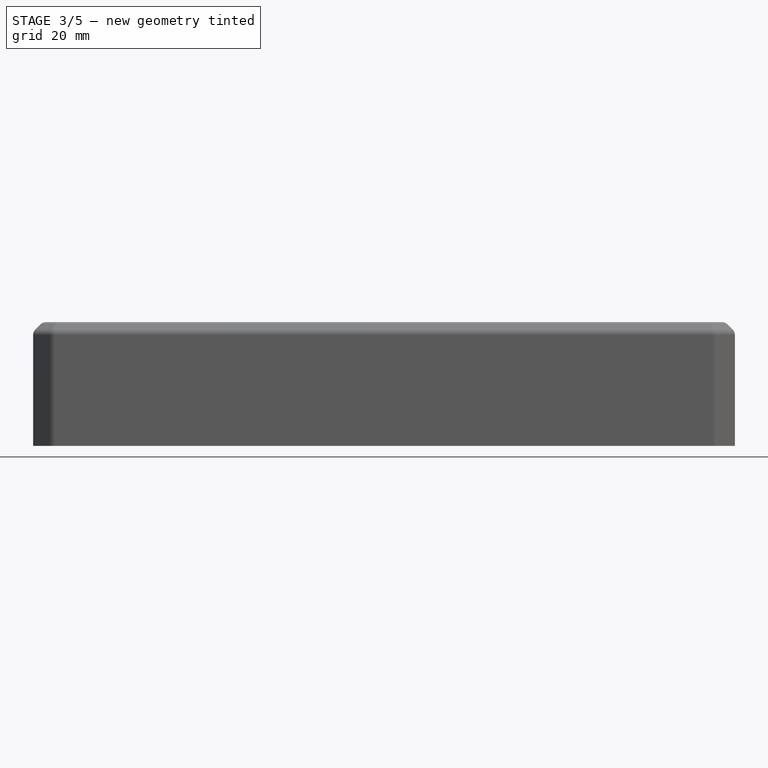
[diagram: stage 3 of 5 — front view after this stage's code; geometry added in this stage tinted green]
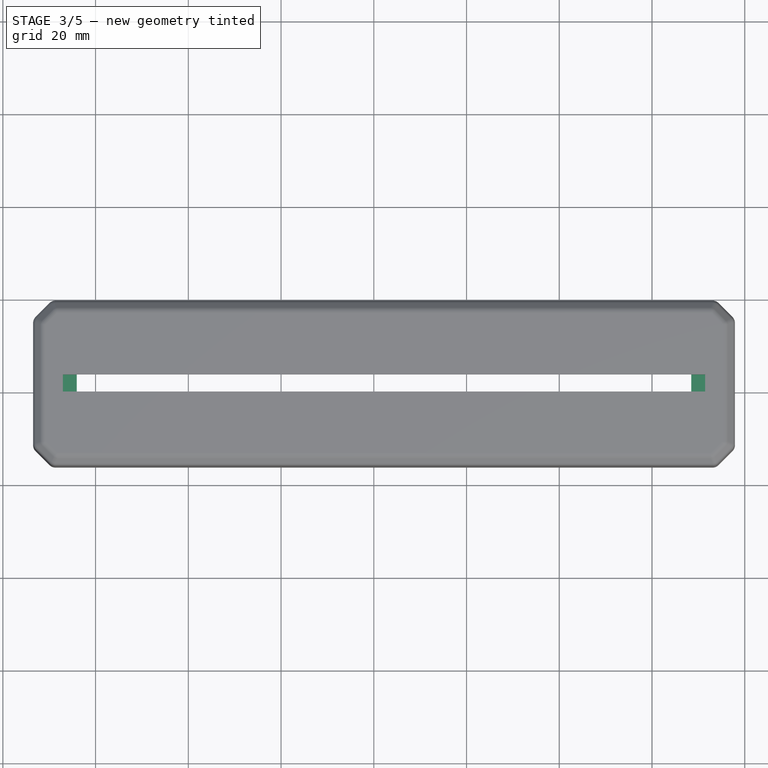
[diagram: stage 3 of 5 — top view after this stage's code; geometry added in this stage tinted green]
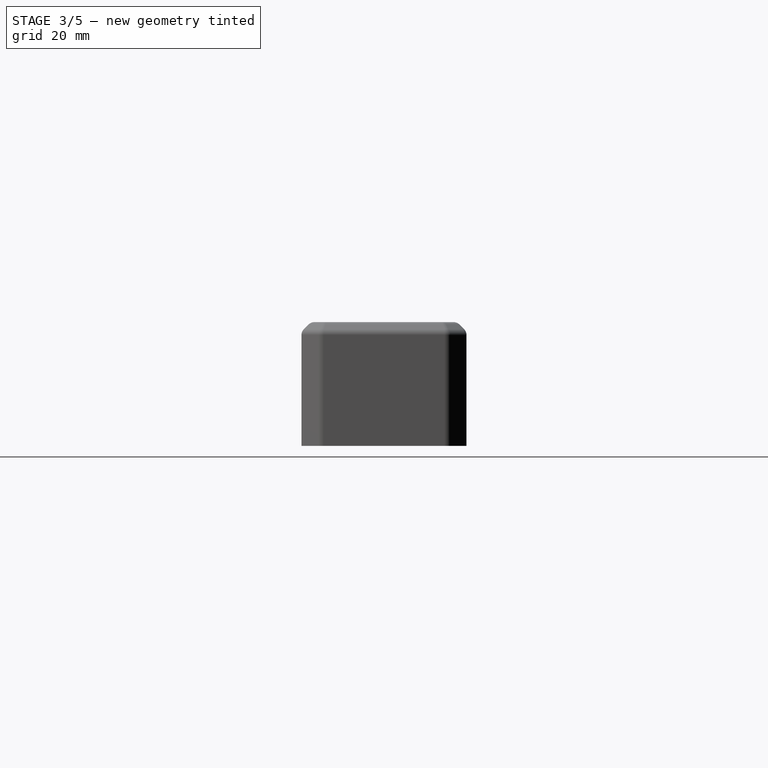
[diagram: stage 3 of 5 — right view after this stage's code; geometry added in this stage tinted green]
FEATURE [Sketcher::SketchObject] Sketch005
  ExternalGeometry = -> [Pad003]
  MapMode = 5
  Placement = pos=(0,0,-4.77786) rot=(1,0,0;3.14159rad)
  Support = -> [Pad003]
  sketch-geometry (4):
    g0: LineSegment StartX=-10.0655 StartY=3.2 StartZ=0 EndX=-4.06553 EndY=3.2 EndZ=0
    g1: LineSegment StartX=-4.06553 StartY=3.2 StartZ=0 EndX=-4.06553 EndY=-6.5 EndZ=0
    g2: LineSegment StartX=-4.06553 StartY=-6.5 StartZ=0 EndX=-10.0655 EndY=-6.5 EndZ=0
    g3: LineSegment StartX=-10.0655 StartY=-6.5 StartZ=0 EndX=-10.0655 EndY=3.2 EndZ=0
  constraints (10):
    c: Coincident(g0,g1)
    c: Coincident(g1,g2)
    c: Coincident(g2,g3)
    c: Coincident(g3,g0)
    c: Horizontal(g0)
    c: Horizontal(g2)
    c: Vertical(g1)
    c: Vertical(g3)
    c: Coincident(g0,g-3)
    c: Coincident(g1,g-4)
FEATURE [PartDesign::Pad] Pad004
  BaseFeature = -> Pad003
  Length = 1.8
  Length2 = 100
  Profile = -> Sketch005
  Refine = true
  Type = 0
FEATURE [PartDesign::Plane] DatumPlane
  AttachmentOffset = pos=(0,0,-75.665) rot=(0,0,1;0rad)
  Length = 42.8859
  MapMode = 5
  Placement = pos=(62.1978,-1.2e-15,1.2e-15) rot=(0.57735,-0.57735,-0.57735;2.0944rad)
  ResizeMode = 0
  Support = -> [Pad004]
  Width = 44.5637
FEATURE [PartDesign::Mirrored] Mirrored
  BaseFeature = -> Pad004
  MirrorPlane = -> DatumPlane
  Originals = -> [Pad003]
  Refine = true
FEATURE [PartDesign::Mirrored] Mirrored001
  BaseFeature = -> Mirrored
  MirrorPlane = -> DatumPlane
  Originals = -> [Pad004]
  Refine = true
FEATURE [PartDesign::ShapeBinder] ShapeBinder003
  Placement = pos=(-57.8,64.17,-17.78) rot=(0,0,1;0rad)
  Support = -> [Pcb_ac20]
  TraceSupport = true
FEATURE [Sketcher::SketchObject] Sketch006
  ExternalGeometry = -> [ShapeBinder003,Mirrored001]
  MapMode = 5
  Placement = pos=(0,-5e-16,-2.37786) rot=(1,0,0;3.14159rad)
  Support = -> [Mirrored001]
  sketch-geometry (8):
    g0: ArcOfCircle CenterX=-7.65 CenterY=10.33 CenterZ=0 NormalX=0 NormalY=0 NormalZ=1 AngleXU=0 Radius=2.5 StartAngle=4.71239 EndAngle=6.28319
    g1: LineSegment StartX=-5.15 StartY=10.33 StartZ=0 EndX=-5.15 EndY=14.35 EndZ=0
    g2: LineSegment StartX=-5.15 StartY=14.35 StartZ=0 EndX=-8.66716 EndY=14.35 EndZ=0
    g3: LineSegment StartX=-8.66716 StartY=14.35 StartZ=0 EndX=-11.6672 EndY=11.35 EndZ=0
    g4: LineSegment StartX=-11.6672 StartY=11.35 StartZ=0 EndX=-11.6672 EndY=7.83 EndZ=0
    g5: LineSegment StartX=-11.6672 StartY=7.83 StartZ=0 EndX=-7.65 EndY=7.83 EndZ=0
    g6: LineSegment [constr] StartX=-7.65 StartY=10.33 StartZ=0 EndX=-7.65 EndY=7.83 EndZ=0
    g7: LineSegment [constr] StartX=-7.65 StartY=10.33 StartZ=0 EndX=-5.15 EndY=10.33 EndZ=0
  constraints (20):
    c: Coincident(g0,g-3)
    c: PointOnObject(g1,g-4)
    c: Vertical(g1)
    c: Coincident(g2,g1)
    c: Coincident(g2,g-6)
    c: Coincident(g3,g2)
    c: Coincident(g3,g-6)
    c: Coincident(g4,g3)
    c: PointOnObject(g4,g-5)
    c: Coincident(g5,g4)
    c: Horizontal(g5)
    c: Coincident(g6,g0)
    c: Coincident(g6,g0)
    c: Vertical(g6)
    c: Coincident(g7,g0)
    c: Coincident(g7,g0)
    c: Horizontal(g7)
    c: Coincident(g5,g0)
    c: Coincident(g0,g1)
    c: DistanceX(g7,g7) = 2.5
FEATURE [PartDesign::Pad] Pad005
  BaseFeature = -> Mirrored001
  Length = 10
  Length2 = 100
  Profile = -> Sketch006
  Refine = true
  Type = 3
  UpToFace = -> ShapeBinder003 [Face1]
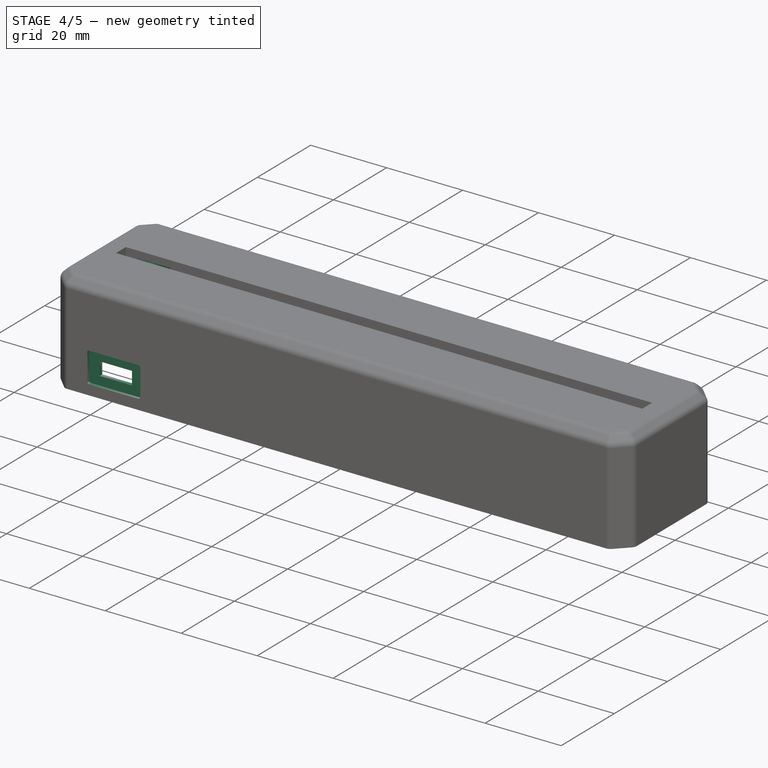
[diagram: stage 4 of 5 — iso view after this stage's code; geometry added in this stage tinted green]
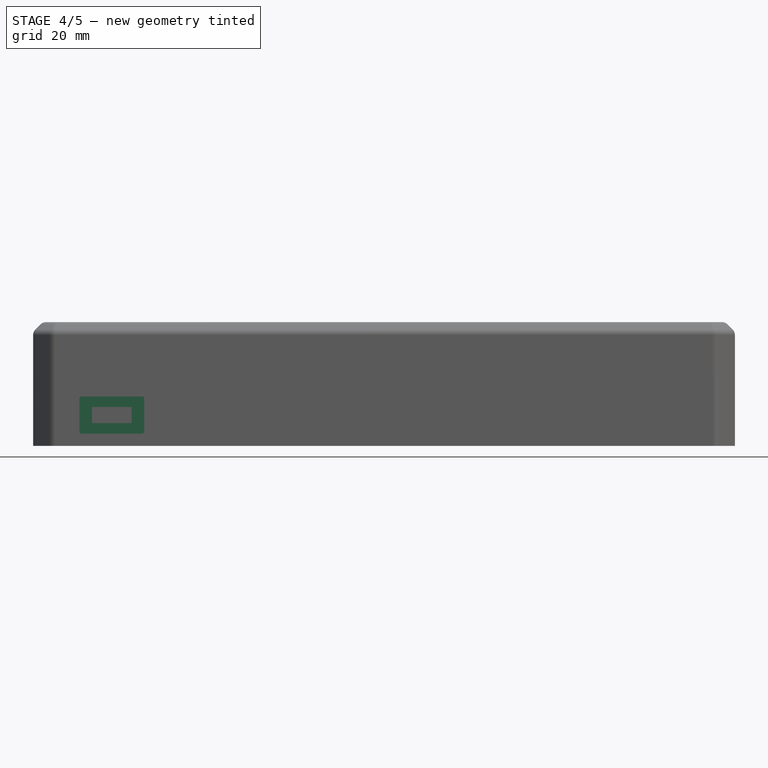
[diagram: stage 4 of 5 — front view after this stage's code; geometry added in this stage tinted green]
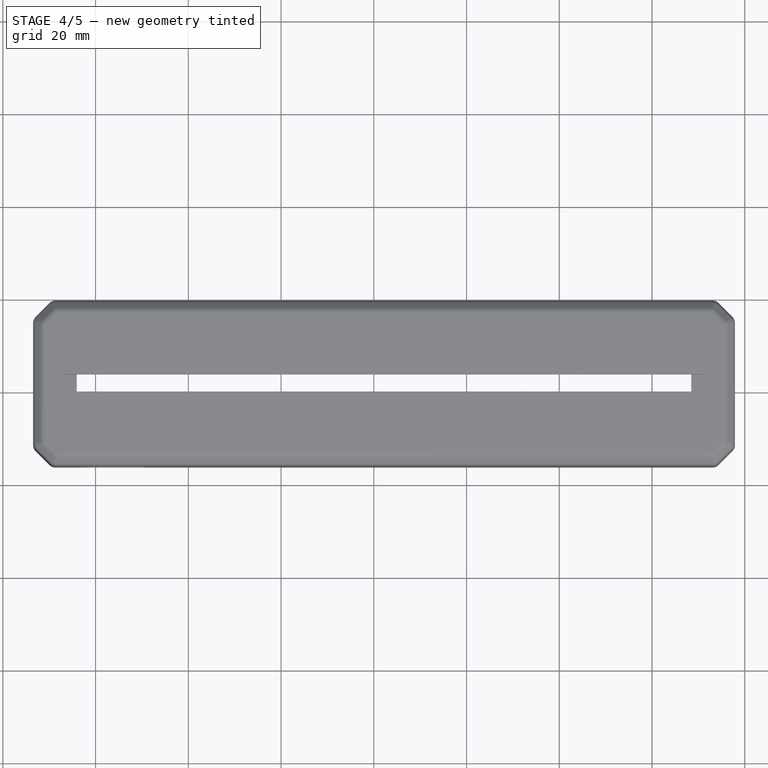
[diagram: stage 4 of 5 — top view after this stage's code; geometry added in this stage tinted green]
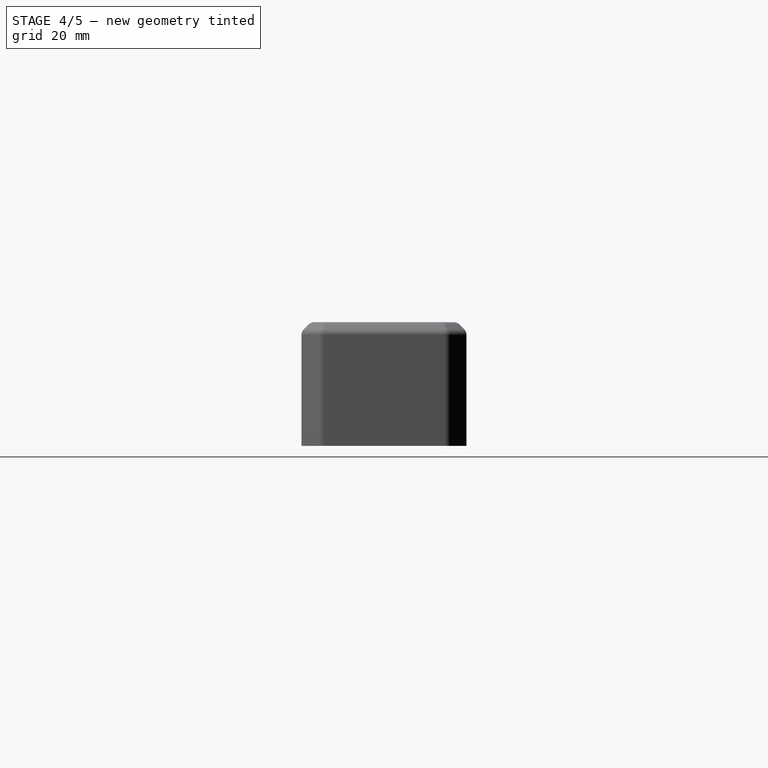
[diagram: stage 4 of 5 — right view after this stage's code; geometry added in this stage tinted green]
FEATURE [PartDesign::Plane] DatumPlane001
  AttachmentOffset = pos=(0,0,-17.8) rot=(0,0,1;0rad)
  Length = 166.354
  MapMode = 5
  Placement = pos=(0,1.65,0) rot=(1,0,0;1.5708rad)
  ResizeMode = 0
  Width = 52.2997
FEATURE [PartDesign::Mirrored] Mirrored002
  MirrorPlane = -> DatumPlane
  Refine = true
FEATURE [PartDesign::Mirrored] Mirrored003
  MirrorPlane = -> DatumPlane001
  Refine = true
FEATURE [PartDesign::MultiTransform] MultiTransform
  BaseFeature = -> Pad005
  Originals = -> [Pad005]
  Refine = true
  Transformations = -> [Mirrored002,Mirrored003]
FEATURE [Sketcher::SketchObject] Sketch007
  ExternalGeometry = -> [MultiTransform]
  MapMode = 5
  Placement = pos=(0,0,-17.78) rot=(1,0,0;3.14159rad)
  Support = -> [MultiTransform]
  sketch-geometry (4):
    g0: Circle CenterX=-7.65 CenterY=10.33 CenterZ=0 NormalX=0 NormalY=0 NormalZ=1 AngleXU=0 Radius=1.25
    g1: Circle CenterX=-7.65 CenterY=-13.63 CenterZ=0 NormalX=0 NormalY=0 NormalZ=1 AngleXU=0 Radius=1.25
    g2: Circle CenterX=132.046 CenterY=-13.63 CenterZ=0 NormalX=0 NormalY=0 NormalZ=1 AngleXU=0 Radius=1.25
    g3: Circle CenterX=132.046 CenterY=10.33 CenterZ=0 NormalX=0 NormalY=0 NormalZ=1 AngleXU=0 Radius=1.25
  constraints (8):
    c: Coincident(g0,g-3)
    c: Coincident(g1,g-4)
    c: Coincident(g2,g-6)
    c: Coincident(g3,g-5)
    c: Equal(g3,g2)
    c: Equal(g2,g1)
    c: Equal(g1,g0)
    c: Diameter(g0) = 2.5
FEATURE [PartDesign::Pocket] Pocket002
  BaseFeature = -> MultiTransform
  Length = 10
  Length2 = 100
  Profile = -> Sketch007
  Refine = true
  Type = 0
FEATURE [PartDesign::ShapeBinder] ShapeBinder004
  Placement = pos=(-57.8,64.17,-17.78) rot=(0,0,1;0rad)
  Support = -> [Shape057]
  TraceSupport = true
FEATURE [Sketcher::SketchObject] Sketch008
  ExternalGeometry = -> [ShapeBinder004]
  MapMode = 5
  Placement = pos=(1.5e-15,-16.15,0) rot=(1,0,0;1.5708rad)
  Support = -> [Pocket002]
  sketch-geometry (12):
    g0: LineSegment StartX=-0.76 StartY=-18.88 StartZ=0 EndX=7.76 EndY=-18.88 EndZ=0
    g1: LineSegment StartX=7.76 StartY=-18.88 StartZ=0 EndX=7.76 EndY=-22.36 EndZ=0
    g2: LineSegment StartX=7.76 StartY=-22.36 StartZ=0 EndX=-0.76 EndY=-22.36 EndZ=0
    g3: LineSegment StartX=-0.76 StartY=-22.36 StartZ=0 EndX=-0.76 EndY=-18.88 EndZ=0
    g4: LineSegment [constr] StartX=-0.26 StartY=-19.38 StartZ=0 EndX=7.26 EndY=-19.38 EndZ=0
    g5: LineSegment [constr] StartX=7.26 StartY=-19.38 StartZ=0 EndX=7.26 EndY=-21.86 EndZ=0
    g6: LineSegment [constr] StartX=7.26 StartY=-21.86 StartZ=0 EndX=-0.26 EndY=-21.86 EndZ=0
    g7: LineSegment [constr] StartX=-0.26 StartY=-21.86 StartZ=0 EndX=-0.26 EndY=-19.38 EndZ=0
    g8: LineSegment [constr] StartX=-0.26 StartY=-19.38 StartZ=0 EndX=-0.26 EndY=-18.88 EndZ=0
    g9: LineSegment [constr] StartX=-0.26 StartY=-19.38 StartZ=0 EndX=-0.76 EndY=-19.38 EndZ=0
    g10: LineSegment [constr] StartX=7.26 StartY=-21.86 StartZ=0 EndX=7.26 EndY=-22.36 EndZ=0
    g11: LineSegment [constr] StartX=7.26 StartY=-21.86 StartZ=0 EndX=7.76 EndY=-21.86 EndZ=0
  constraints (36):
    c: Coincident(g0,g1)
    c: Coincident(g1,g2)
    c: Coincident(g2,g3)
    c: Coincident(g3,g0)
    c: Horizontal(g0)
    c: Horizontal(g2)
    c: Vertical(g1)
    c: Vertical(g3)
    c: Coincident(g4,g5)
    c: Coincident(g5,g6)
    c: Coincident(g6,g7)
    c: Coincident(g7,g4)
    c: Horizontal(g4)
    c: Horizontal(g6)
    c: Vertical(g5)
    c: Vertical(g7)
    c: PointOnObject(g-7,g4)
    c: PointOnObject(g-8,g7)
    c: PointOnObject(g-6,g6)
    c: PointOnObject(g-3,g5)
    c: Coincident(g8,g4)
    c: PointOnObject(g8,g0)
    c: Vertical(g8)
    c: Coincident(g9,g4)
    c: PointOnObject(g9,g3)
    c: Horizontal(g9)
    c: Coincident(g10,g5)
    c: PointOnObject(g10,g2)
    c: Vertical(g10)
    c: Coincident(g11,g5)
    c: PointOnObject(g11,g1)
    c: Horizontal(g11)
    c: Equal(g11,g10)
    c: Equal(g11,g8)
    c: Equal(g8,g9)
    c: DistanceY(g10,g10) = 0.5
FEATURE [PartDesign::Pocket] Pocket003
  BaseFeature = -> Pocket002
  Length = 5
  Length2 = 100
  Profile = -> Sketch008
  Refine = true
  Type = 0
FEATURE [Sketcher::SketchObject] Sketch009
  ExternalGeometry = -> [Pocket003]
  MapMode = 5
  Placement = pos=(1.5e-15,-16.15,0) rot=(1,0,0;1.5708rad)
  Support = -> [Pocket003]
  sketch-geometry (8):
    g0: LineSegment StartX=-3.5 StartY=-16.62 StartZ=0 EndX=10.5 EndY=-16.62 EndZ=0
    g1: LineSegment StartX=10.5 StartY=-16.62 StartZ=0 EndX=10.5 EndY=-24.62 EndZ=0
    g2: LineSegment StartX=10.5 StartY=-24.62 StartZ=0 EndX=-3.5 EndY=-24.62 EndZ=0
    g3: LineSegment StartX=-3.5 StartY=-24.62 StartZ=0 EndX=-3.5 EndY=-16.62 EndZ=0
    g4: LineSegment [constr] StartX=7.76 StartY=-18.88 StartZ=0 EndX=10.5 EndY=-18.88 EndZ=0
    g5: LineSegment [constr] StartX=-0.76 StartY=-18.88 StartZ=0 EndX=-3.5 EndY=-18.88 EndZ=0
    g6: LineSegment [constr] StartX=-0.76 StartY=-18.88 StartZ=0 EndX=-0.76 EndY=-16.62 EndZ=0
    g7: LineSegment [constr] StartX=-0.76 StartY=-22.36 StartZ=0 EndX=-0.76 EndY=-24.62 EndZ=0
  constraints (24):
    c: Coincident(g0,g1)
    c: Coincident(g1,g2)
    c: Coincident(g2,g3)
    c: Coincident(g3,g0)
    c: Horizontal(g0)
    c: Horizontal(g2)
    c: Vertical(g1)
    c: Vertical(g3)
    c: Coincident(g4,g-3)
    c: PointOnObject(g4,g1)
    c: Horizontal(g4)
    c: Coincident(g5,g-3)
    c: PointOnObject(g5,g3)
    c: Horizontal(g5)
    c: Coincident(g6,g5)
    c: PointOnObject(g6,g0)
    c: Vertical(g6)
    c: Coincident(g7,g-4)
    c: PointOnObject(g7,g2)
    c: Vertical(g7)
    c: Equal(g7,g6)
    c: Equal(g5,g4)
    c: DistanceX(g0,g0) = 14
    c: DistanceY(g1,g1) = 8
FEATURE [PartDesign::Pocket] Pocket004
  BaseFeature = -> Pocket003
  Length = 0.8
  Length2 = 100
  Profile = -> Sketch009
  Refine = true
  Type = 0
FEATURE [PartDesign::Fillet] Fillet
  Base = -> Pocket004 [Edge307,Edge309,Edge310,Edge308]
  BaseFeature = -> Pocket004
  Radius = 0.5
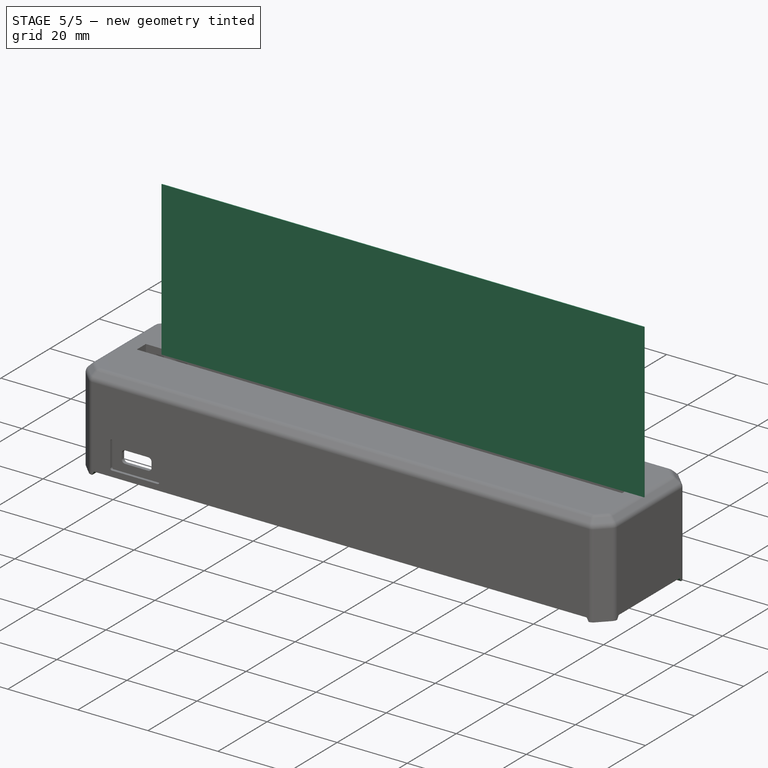
[diagram: stage 5 of 5 — iso view after this stage's code; geometry added in this stage tinted green]
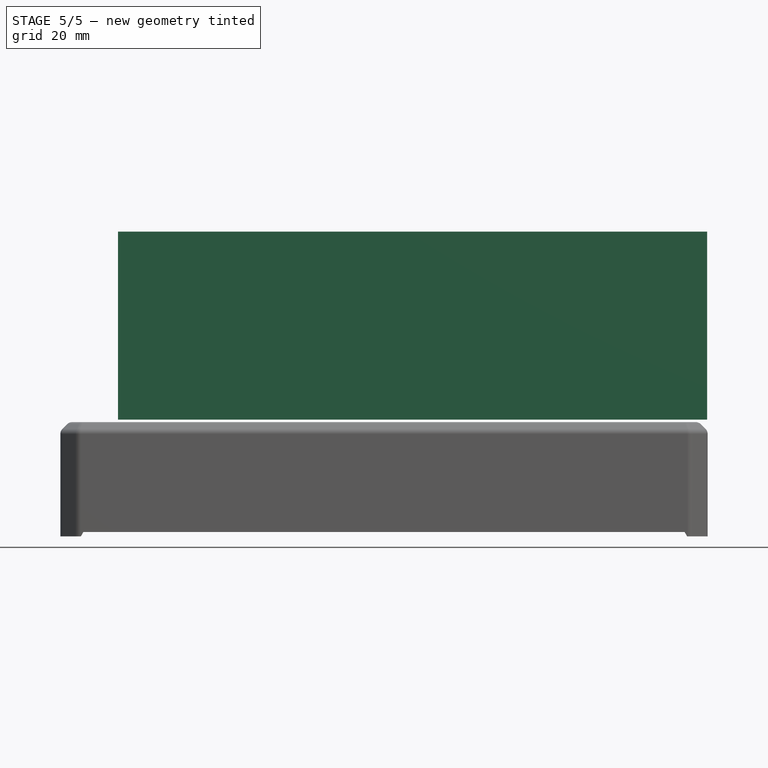
[diagram: stage 5 of 5 — front view after this stage's code; geometry added in this stage tinted green]
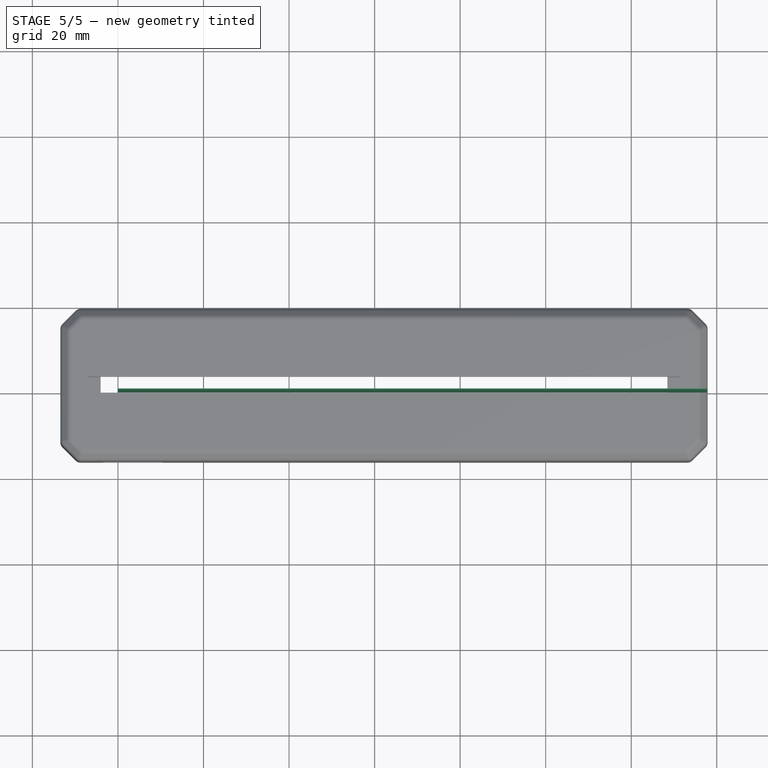
[diagram: stage 5 of 5 — top view after this stage's code; geometry added in this stage tinted green]
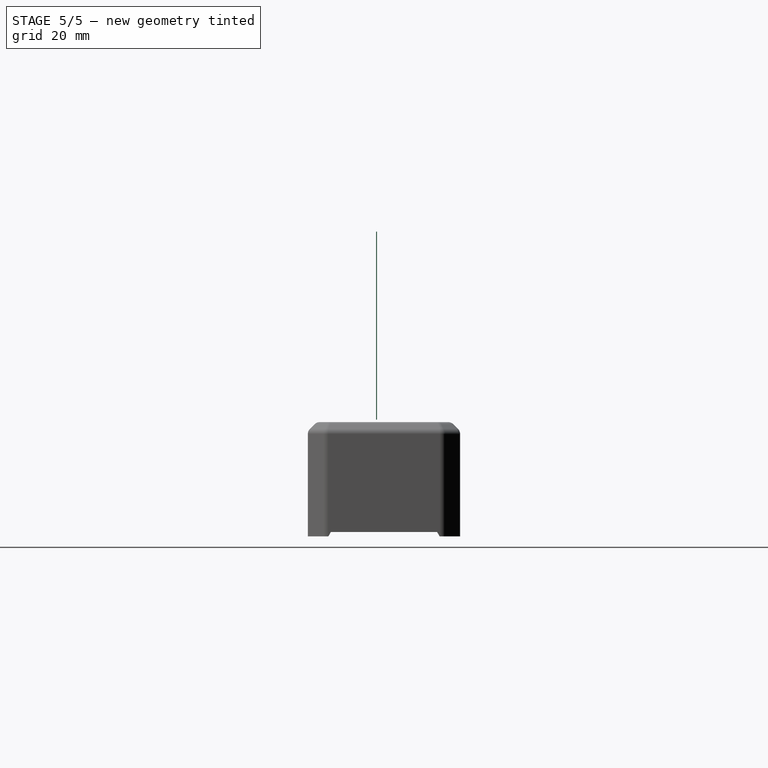
[diagram: stage 5 of 5 — right view after this stage's code; geometry added in this stage tinted green]
FEATURE [PartDesign::Body] Body001  label="acylic_words_02"
  BaseFeature = -> Body
  Group = -> [Clone]
  Origin = -> Origin001
  Placement = pos=(124.4,3.3,0) rot=(0,0,1;3.14159rad)
  Tip = -> Clone
FEATURE [Sketcher::SketchObject] Sketch001
  MapMode = 5
  Placement = pos=(0,0,0) rot=(1,0,0;1.5708rad)
  Support = -> [XZ_Plane002]
  sketch-geometry (4):
    g0: LineSegment StartX=0 StartY=0 StartZ=0 EndX=137.73 EndY=0 EndZ=0
    g1: LineSegment StartX=137.73 StartY=0 StartZ=0 EndX=137.73 EndY=43.95 EndZ=0
    g2: LineSegment StartX=137.73 StartY=43.95 StartZ=0 EndX=0 EndY=43.95 EndZ=0
    g3: LineSegment StartX=0 StartY=43.95 StartZ=0 EndX=0 EndY=0 EndZ=0
  constraints (11):
    c: Coincident(g0,g1)
    c: Coincident(g1,g2)
    c: Coincident(g2,g3)
    c: Coincident(g3,g0)
    c: Horizontal(g0)
    c: Horizontal(g2)
    c: Vertical(g1)
    c: Vertical(g3)
    c: Coincident(g0,g-1)
    c: DistanceX(g2,g2) = 137.73
    c: DistanceY(g1,g1) = 43.95
FEATURE [PartDesign::Pad] Pad001
  Length = 0.2
  Length2 = 100
  Placement = pos=(0,0,0) rot=(1,0,0;1.5708rad)
  Profile = -> Sketch001
  Refine = true
  Type = 0
FEATURE [PartDesign::Fillet] Fillet001
  Base = -> Fillet [Edge131,Edge133,Edge134,Edge132]
  BaseFeature = -> Fillet
  Radius = 1
FEATURE [Sketcher::SketchObject] Sketch010
  ExternalGeometry = -> [Fillet001]
  MapMode = 5
  Placement = pos=(137.866,1.24e-14,-1.24e-14) rot=(0.57735,0.57735,0.57735;2.0944rad)
  Support = -> [Fillet001]
  sketch-geometry (4):
    g0: LineSegment StartX=-11.35 StartY=-27.2779 StartZ=0 EndX=14.65 EndY=-27.2779 EndZ=0
    g1: LineSegment StartX=14.65 StartY=-27.2779 StartZ=0 EndX=14.0726 EndY=-26.2779 EndZ=0
    g2: LineSegment StartX=14.0726 StartY=-26.2779 StartZ=0 EndX=-10.7726 EndY=-26.2779 EndZ=0
    g3: LineSegment StartX=-10.7726 StartY=-26.2779 StartZ=0 EndX=-11.35 EndY=-27.2779 EndZ=0
  constraints (10):
    c: Coincident(g1,g0)
    c: Coincident(g2,g1)
    c: Horizontal(g2)
    c: Coincident(g3,g2)
    c: Coincident(g3,g0)
    c: Angle(g1,g0) = 1.0472
    c: Angle(g0,g3) = 1.0472
    c: Coincident(g0,g-4)
    c: Coincident(g0,g-5)
    c: DistanceY(g0,g1) = 1
FEATURE [PartDesign::Pocket] Pocket005
  BaseFeature = -> Fillet001
  Length = 5
  Length2 = 100
  Profile = -> Sketch010
  Refine = true
  Type = 1
FEATURE [Sketcher::SketchObject] Sketch011
  ExternalGeometry = -> [Pocket005]
  MapMode = 5
  Placement = pos=(1.5e-15,-16.15,0) rot=(1,0,0;1.5708rad)
  Support = -> [Pocket005]
  sketch-geometry (4):
    g0: LineSegment StartX=-8.66716 StartY=-27.2779 StartZ=0 EndX=133.066 EndY=-27.2779 EndZ=0
    g1: LineSegment StartX=133.066 StartY=-27.2779 StartZ=0 EndX=132.488 EndY=-26.2779 EndZ=0
    g2: LineSegment StartX=132.488 StartY=-26.2779 StartZ=0 EndX=-8.08981 EndY=-26.2779 EndZ=0
    g3: LineSegment StartX=-8.08981 StartY=-26.2779 StartZ=0 EndX=-8.66716 EndY=-27.2779 EndZ=0
  constraints (10):
    c: Coincident(g0,g-3)
    c: Coincident(g0,g-4)
    c: Coincident(g1,g0)
    c: Coincident(g2,g1)
    c: Horizontal(g2)
    c: Coincident(g3,g2)
    c: Coincident(g3,g0)
    c: Angle(g0,g3) = 1.0472
    c: Angle(g1,g0) = 1.0472
    c: DistanceY(g0,g1) = 1
FEATURE [PartDesign::Pocket] Pocket006
  BaseFeature = -> Pocket005
  Length = 5
  Length2 = 100
  Profile = -> Sketch011
  Refine = true
  Type = 1
FEATURE [PartDesign::Body] Body003  label="base"
  Group = -> [ShapeBinder001,ShapeBinder002,Sketch002,Pad002,Chamfer,Chamfer001,Thickness,Sketch003,Pocket001,Sketch004,Pad003,Sketch005,Pad004,DatumPlane,Mirrored,Mirrored001,ShapeBinder003,Sketch006,Pad005,DatumPlane001,MultiTransform,Mirrored002,Mirrored003,Sketch007,Pocket002,ShapeBinder004,Sketch008,Pocket003,Sketch009,Pocket004,Fillet,Fillet001,Sketch010,Pocket005,Sketch011,Pocket006]
  Origin = -> Origin003
  Tip = -> Pocket006
note: 1 file-system path scrubbed to <path> (originals preserved in the JSON sidecar)
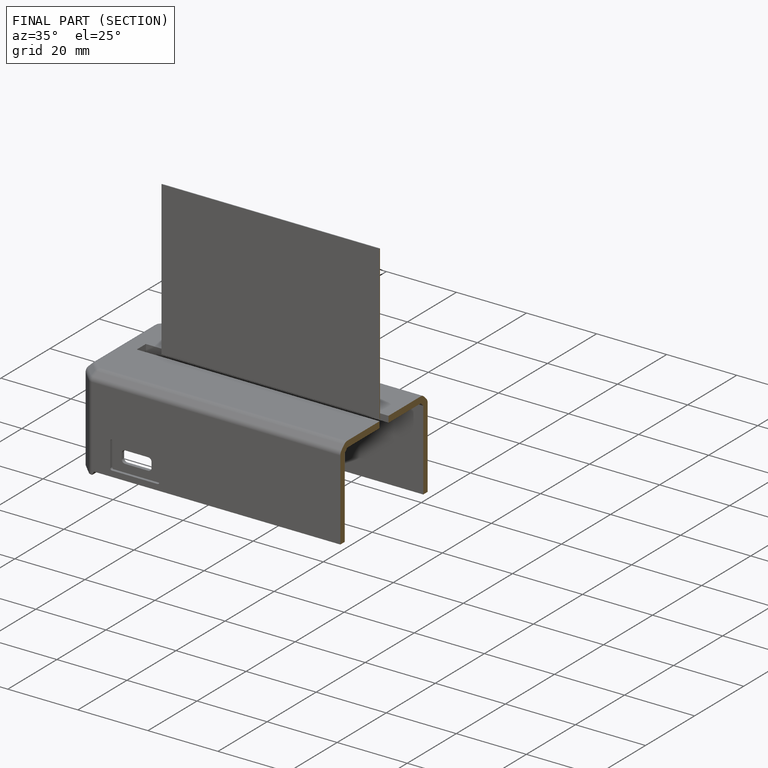
[diagram: finished part — half-section view (interior)]
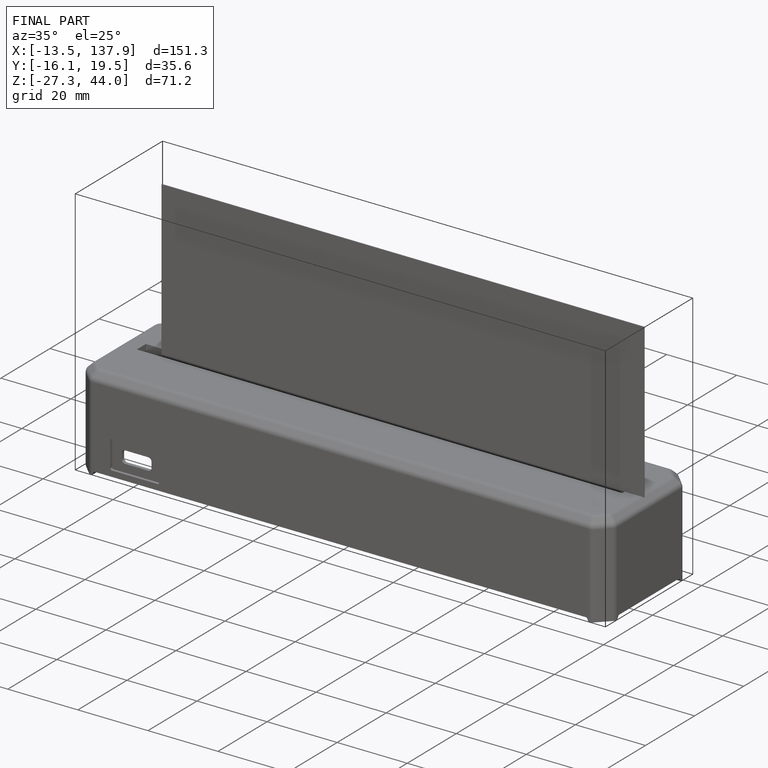
[diagram: finished part — iso view with bounding-box wireframe]
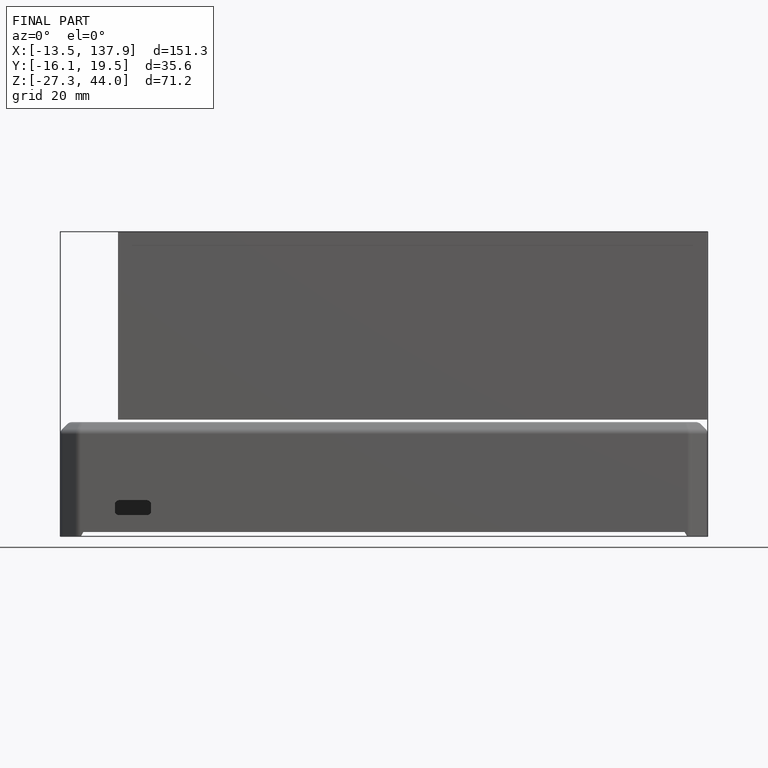
[diagram: finished part — front view with bounding-box wireframe]
